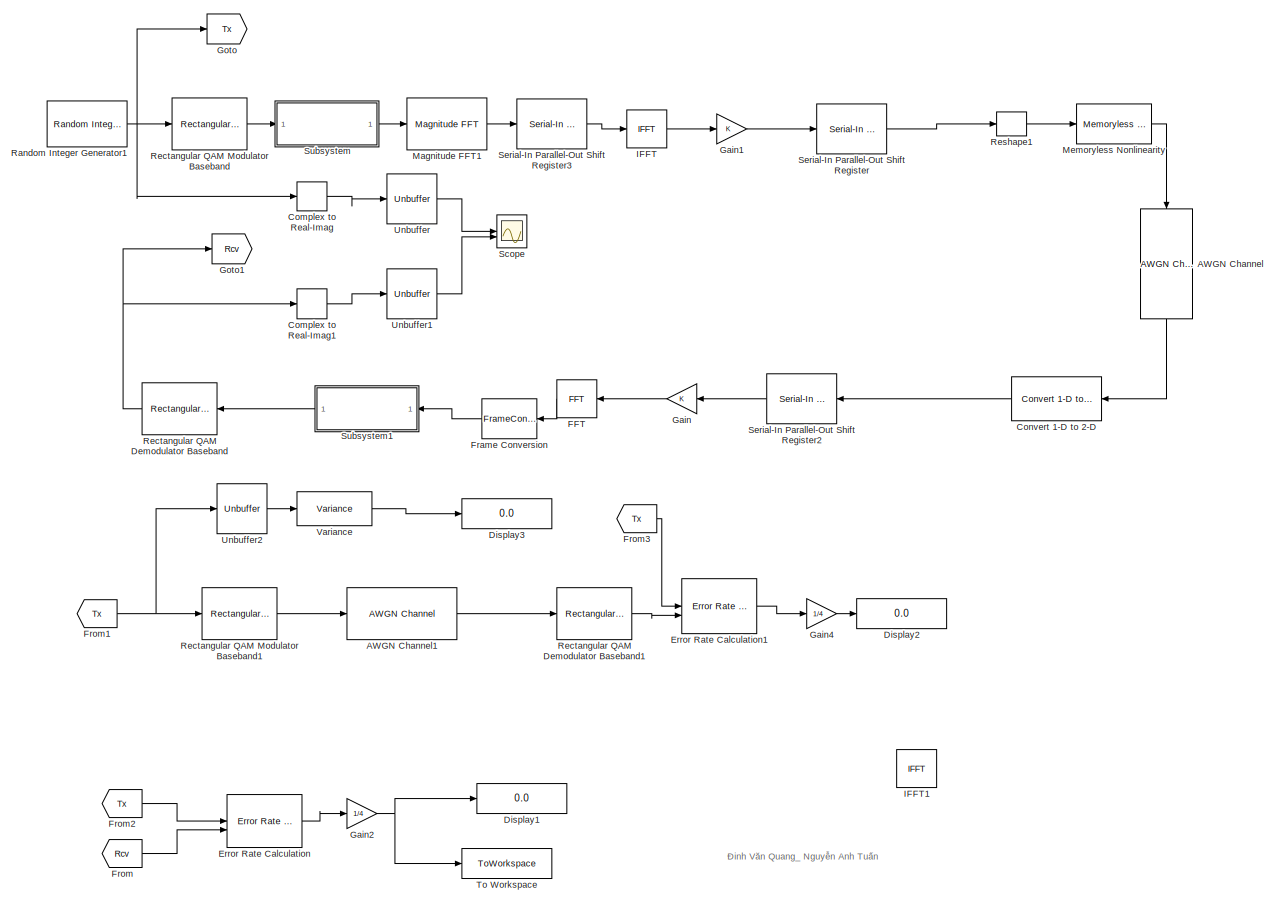
[diagram: root canvas - part 1/1, most of the canvas]
MODEL slx_2feca76960d1
KIND model
CONFIG AbsTol = auto
CONFIG EnableMultiTasking = off
CONFIG FixedStep = auto
CONFIG MaxStep = auto
CONFIG MinStep = auto
CONFIG RelTol = 1e-3
CONFIG SampleTimeConstraint = Unconstrained
CONFIG SolverName = VariableStepAuto
CONFIG StartTime = 0.0
CONFIG StopTime = 10.0
BLOCK [Reference] AWGN Channel  REF=commchan3/AWGN
Channel
  NameLocation = left
  SourceBlock = commchan3/AWGN\nChannel
  SourceType = AWGN Channel
BLOCK [Reference] AWGN Channel1  REF=commchan3/AWGN
Channel
  SourceBlock = commchan3/AWGN\nChannel
  SourceType = AWGN Channel
BLOCK [ComplexToRealImag] Complex to Real-Imag
BLOCK [ComplexToRealImag] Complex to Real-Imag1
  Output = Real
BLOCK [Reference] Convert 1-D to 2-D  REF=dspsigattribs/Convert 1-D to 2-D
  SourceBlock = dspsigattribs/Convert 1-D to 2-D
  SourceType = Convert 1-D to 2-D
BLOCK [Display] Display1
  Decimation = 1
BLOCK [Display] Display2
  Decimation = 1
BLOCK [Display] Display3
  Decimation = 1
BLOCK [Reference] Error Rate Calculation  REF=commsink2/Error Rate
Calculation
  SourceBlock = commsink2/Error Rate\nCalculation
  SourceType = Error Rate Calculation
BLOCK [Reference] Error Rate Calculation1  REF=commsink2/Error Rate
Calculation
  SourceBlock = commsink2/Error Rate\nCalculation
  SourceType = Error Rate Calculation
BLOCK [Reference] FFT  REF=dspxfrm3/FFT
  SourceBlock = dspxfrm3/FFT
  SourceType = FFT
BLOCK [FrameConversion] Frame Conversion
BLOCK [From] From
  GotoTag = Rcv
BLOCK [From] From1
  GotoTag = Tx
BLOCK [From] From2
  GotoTag = Tx
BLOCK [From] From3
  GotoTag = Tx
BLOCK [Gain] Gain
BLOCK [Gain] Gain1
BLOCK [Gain] Gain2
  Gain = 1/4
BLOCK [Gain] Gain4
  Gain = 1/4
BLOCK [Goto] Goto
  GotoTag = Tx
BLOCK [Goto] Goto1
  GotoTag = Rcv
BLOCK [Reference] IFFT  REF=dspxfrm3/IFFT
  SourceBlock = dspxfrm3/IFFT
  SourceType = IFFT
BLOCK [Reference] IFFT1  REF=dspxfrm3/IFFT
  SourceBlock = dspxfrm3/IFFT
  SourceType = IFFT
BLOCK [Reference] Magnitude FFT1  REF=dspspect3/Magnitude
FFT
  SourceBlock = dspspect3/Magnitude\nFFT
  SourceType = Magnitude FFT
BLOCK [Reference] Memoryless Nonlinearity  REF=commrflib2/Memoryless
Nonlinearity
  SourceBlock = commrflib2/Memoryless\nNonlinearity
  SourceType = Memoryless Nonlinearity
BLOCK [Reference] Random Integer Generator1  REF=commrandsrc3/Random Integer
Generator
  SourceBlock = commrandsrc3/Random Integer\nGenerator
  SourceType = Random Integer Generator
BLOCK [Reference] Rectangular QAM Demodulator Baseband  REF=commdigbbndam3/Rectangular QAM
Demodulator
Baseband
  LibrarySourceBlock = commhdldigbbndam/Rectangular QAM\nDemodulator\nBaseband
  SourceBlock = commdigbbndam3/Rectangular QAM\nDemodulator\nBaseband
  SourceType = Rectangular QAM Demodulator Baseband
BLOCK [Reference] Rectangular QAM Demodulator Baseband1  REF=commdigbbndam3/Rectangular QAM
Demodulator
Baseband
  LibrarySourceBlock = commhdldigbbndam/Rectangular QAM\nDemodulator\nBaseband
  SourceBlock = commdigbbndam3/Rectangular QAM\nDemodulator\nBaseband
  SourceType = Rectangular QAM Demodulator Baseband
BLOCK [Reference] Rectangular QAM Modulator Baseband  REF=commdigbbndam3/Rectangular QAM
Modulator
Baseband
  LibrarySourceBlock = commhdldigbbndam/Rectangular QAM\nModulator\nBaseband
  SourceBlock = commdigbbndam3/Rectangular QAM\nModulator\nBaseband
  SourceType = Rectangular QAM Modulator Baseband
BLOCK [Reference] Rectangular QAM Modulator Baseband1  REF=commdigbbndam3/Rectangular QAM
Modulator
Baseband
  LibrarySourceBlock = commhdldigbbndam/Rectangular QAM\nModulator\nBaseband
  SourceBlock = commdigbbndam3/Rectangular QAM\nModulator\nBaseband
  SourceType = Rectangular QAM Modulator Baseband
BLOCK [Reshape] Reshape1
BLOCK [Scope] Scope
  Floating = off
  NumInputPorts = 2
  ScopeSpecificationString = Simulink.scopes.TimeScopeBlockCfg('CurrentConfiguration', extmgr.ConfigurationSet(extmgr.Configuration('Core','General UI',true),extmgr.Configuration('Core','Source UI',true),extmgr.Configuration('Sources','WiredSimulink',true),extmgr.Configuration('Visuals','Time Domain',true),extmgr.Configuration('Tools','Plot Navigation',true),extmgr.Configuration('Tools','Measurements',true)),'Version','2023a'...<+1ch>
BLOCK [Reference] Serial-In Parallel-Out Shift Register  REF=eeGeneralControl/Serial-In Parallel-Out
Shift Register
  LibrarySourceBlock = ee_sl_lib/General Control/Serial-In Parallel-Out\nShift Register
  SourceBlock = eeGeneralControl/Serial-In Parallel-Out\nShift Register
  SourceType = Serial-In Parallel-Out Shift Register
BLOCK [Reference] Serial-In Parallel-Out Shift Register2  REF=eeGeneralControl/Serial-In Parallel-Out
Shift Register
  LibrarySourceBlock = ee_sl_lib/General Control/Serial-In Parallel-Out\nShift Register
  SourceBlock = eeGeneralControl/Serial-In Parallel-Out\nShift Register
  SourceType = Serial-In Parallel-Out Shift Register
BLOCK [Reference] Serial-In Parallel-Out Shift Register3  REF=eeGeneralControl/Serial-In Parallel-Out
Shift Register
  LibrarySourceBlock = ee_sl_lib/General Control/Serial-In Parallel-Out\nShift Register
  SourceBlock = eeGeneralControl/Serial-In Parallel-Out\nShift Register
  SourceType = Serial-In Parallel-Out Shift Register
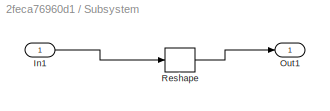
BLOCK [SubSystem] Subsystem
BLOCK [Inport] Subsystem/In1
BLOCK [Outport] Subsystem/Out1
BLOCK [Reshape] Subsystem/Reshape
  OutputDimensionality = Customize
  OutputDimensions = [48,20]
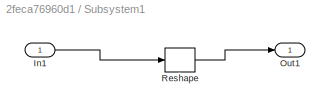
BLOCK [SubSystem] Subsystem1
BLOCK [Inport] Subsystem1/In1
BLOCK [Outport] Subsystem1/Out1
BLOCK [Reshape] Subsystem1/Reshape
  OutputDimensionality = Customize
  OutputDimensions = [960,1]
BLOCK [ToWorkspace] To Workspace
  FixptAsFi = on
  MaxDataPoints = inf
  SampleTime = -1
  SaveFormat = Timeseries
  VariableName = simout
BLOCK [Unbuffer] Unbuffer
BLOCK [Unbuffer] Unbuffer1
BLOCK [Unbuffer] Unbuffer2
BLOCK [Reference] Variance  REF=dspstat3/Variance
  SourceBlock = dspstat3/Variance
  SourceType = Variance
  UserDataPersistent = on
ANNOTATION (root): Đinh Văn Quang_ Nguyễn Anh Tuấn
LINE AWGN Channel1:1 -> Rectangular QAM Demodulator Baseband1:1
LINE AWGN Channel:1 -> Convert 1-D to 2-D:1
LINE Complex to Real-Imag1:1 -> Unbuffer1:1
LINE Complex to Real-Imag:1 -> Unbuffer:1
LINE Convert 1-D to 2-D:1 -> Serial-In Parallel-Out Shift Register2:1
LINE Error Rate Calculation1:1 -> Gain4:1
LINE Error Rate Calculation:1 -> Gain2:1
LINE FFT:1 -> Frame Conversion:1
LINE Frame Conversion:1 -> Subsystem1:1
NET From1:1 -> Rectangular QAM Modulator Baseband1:1, Unbuffer2:1
LINE From2:1 -> Error Rate Calculation:1
LINE From3:1 -> Error Rate Calculation1:1
LINE From:1 -> Error Rate Calculation:2
LINE Gain1:1 -> Serial-In Parallel-Out Shift Register:1
NET Gain2:1 -> Display1:1, To Workspace:1
LINE Gain4:1 -> Display2:1
LINE Gain:1 -> FFT:1
LINE IFFT:1 -> Gain1:1
LINE Magnitude FFT1:1 -> Serial-In Parallel-Out Shift Register3:1
LINE Memoryless Nonlinearity:1 -> AWGN Channel:1
NET Random Integer Generator1:1 -> Complex to Real-Imag:1, Goto:1, Rectangular QAM Modulator Baseband:1
LINE Rectangular QAM Demodulator Baseband1:1 -> Error Rate Calculation1:2
NET Rectangular QAM Demodulator Baseband:1 -> Complex to Real-Imag1:1, Goto1:1
LINE Rectangular QAM Modulator Baseband1:1 -> AWGN Channel1:1
LINE Rectangular QAM Modulator Baseband:1 -> Subsystem:1
LINE Reshape1:1 -> Memoryless Nonlinearity:1
LINE Serial-In Parallel-Out Shift Register2:1 -> Gain:1
LINE Serial-In Parallel-Out Shift Register3:1 -> IFFT:1
LINE Serial-In Parallel-Out Shift Register:1 -> Reshape1:1
LINE Subsystem/In1:1 -> Subsystem/Reshape:1
LINE Subsystem/Reshape:1 -> Subsystem/Out1:1
LINE Subsystem1/In1:1 -> Subsystem1/Reshape:1
LINE Subsystem1/Reshape:1 -> Subsystem1/Out1:1
LINE Subsystem1:1 -> Rectangular QAM Demodulator Baseband:1
LINE Subsystem:1 -> Magnitude FFT1:1
LINE Unbuffer1:1 -> Scope:2
LINE Unbuffer2:1 -> Variance:1
LINE Unbuffer:1 -> Scope:1
LINE Variance:1 -> Display3:1
note: NET lines group one-source signal fan-out (src -> all destinations, sorted); 1:1 wires keep LINE
